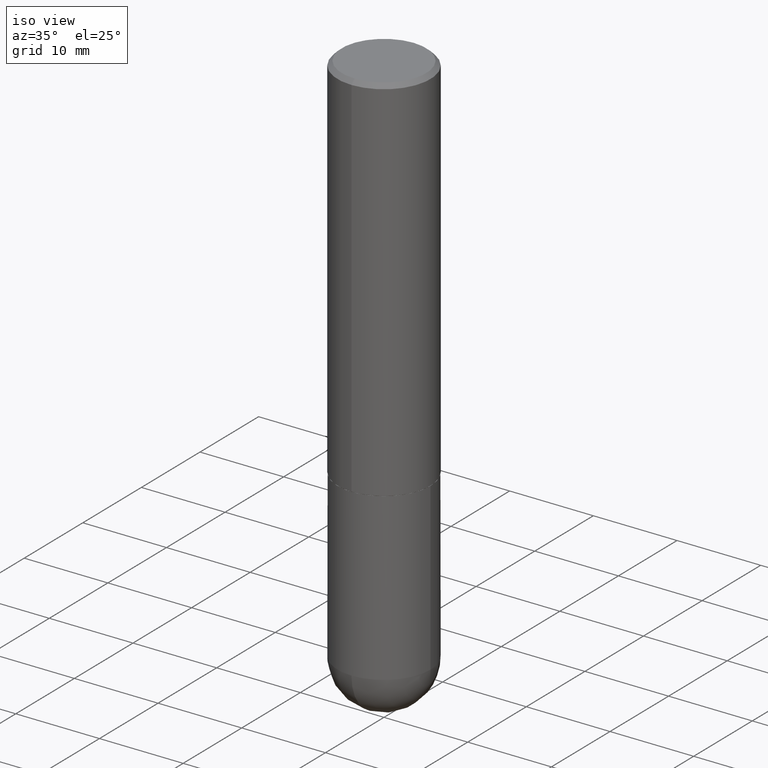
[diagram: clean part render]
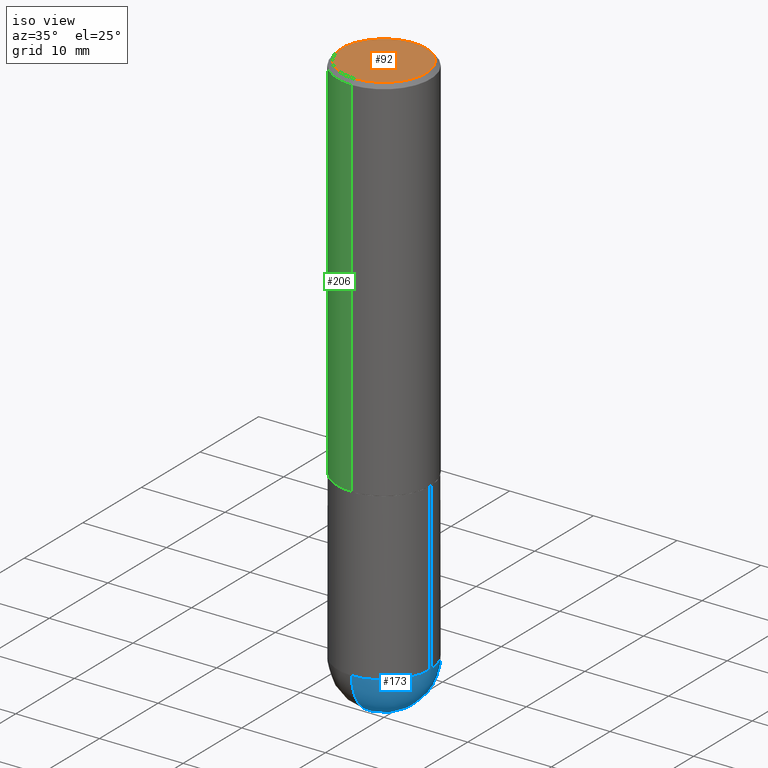
[diagram: same view with three faces highlighted in distinct colors, each labeled with its STEP entity id]
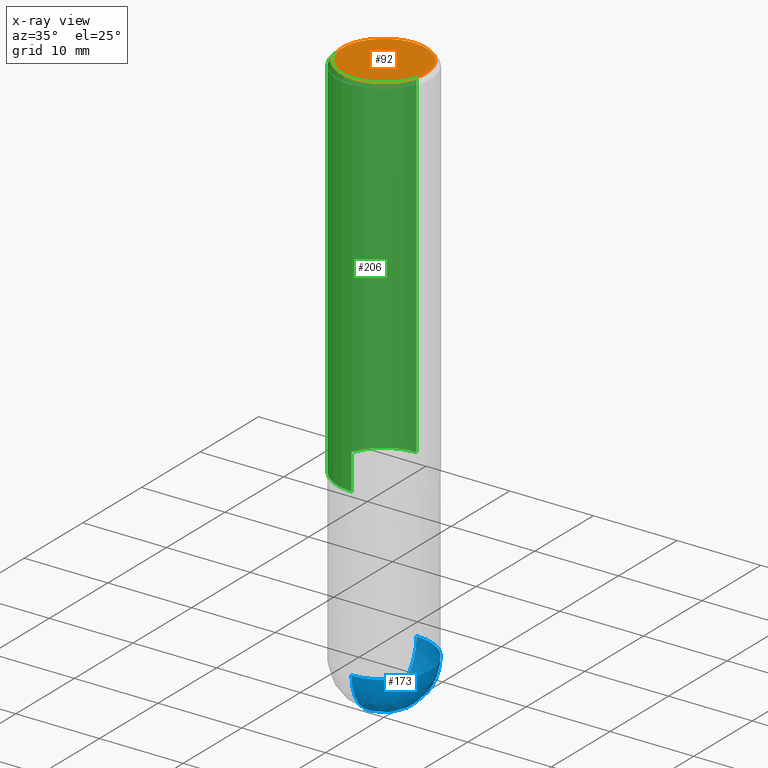
[diagram: x-ray of the same camera — body ghosted, the three highlighted faces saturated]
A machine part, iso view with three faces highlighted in distinct colors.
The next image is the same camera in x-ray (body ghosted, the three faces saturated) — at least one of them is partly hidden behind the body in this view.
Their STEP definitions:

[orange] entity #92 — the highlighted planar face has unit normal (0, -0, -1).
#2 = AXIS2_PLACEMENT_3D ( 'NONE', #355, #258, #34 ) ;
#26 = EDGE_CURVE ( 'NONE', #163, #367, #152, .T. ) ;
#34 = DIRECTION ( 'NONE',  ( -6.982962677686265922E-15, -1.000000000000000000, 3.490529179170961710E-15 ) ) ;
#88 = AXIS2_PLACEMENT_3D ( 'NONE', #283, #344, #244 ) ;
#92 = ADVANCED_FACE ( 'NONE', ( #189 ), #399, .F. ) ;
#138 = EDGE_LOOP ( 'NONE', ( #335, #166 ) ) ;
#152 = CIRCLE ( 'NONE', #394, 0.1987499999999997324 ) ;
#163 = VERTEX_POINT ( 'NONE', #377 ) ;
#166 = ORIENTED_EDGE ( 'NONE', *, *, #203, .T. ) ;
#189 = FACE_OUTER_BOUND ( 'NONE', #138, .T. ) ;
#203 = EDGE_CURVE ( 'NONE', #367, #163, #275, .T. ) ;
#227 = DIRECTION ( 'NONE',  ( -6.982962677686265922E-15, -1.000000000000000000, 3.490529179170961710E-15 ) ) ;
#244 = DIRECTION ( 'NONE',  ( 6.982962677686265922E-15, 1.000000000000000000, -3.490529179170962105E-15 ) ) ;
#256 = DIRECTION ( 'NONE',  ( -2.446133695730542157E-29, 3.490529179170962105E-15, 1.000000000000000000 ) ) ;
#258 = DIRECTION ( 'NONE',  ( -2.446133695730542157E-29, 3.490529179170962105E-15, 1.000000000000000000 ) ) ;
#275 = CIRCLE ( 'NONE', #2, 0.1987499999999997324 ) ;
#283 = CARTESIAN_POINT ( 'NONE',  ( 1.387863832190143458E-15, 0.1987499999999997324, -5.828559704850403027E-16 ) ) ;
#318 = CARTESIAN_POINT ( 'NONE',  ( -5.424874055151809807E-45, 7.741065509168630916E-31, 2.217734077503748917E-16 ) ) ;
#335 = ORIENTED_EDGE ( 'NONE', *, *, #26, .T. ) ;
#344 = DIRECTION ( 'NONE',  ( 2.446133695730541876E-29, -3.490529179170962105E-15, -1.000000000000000000 ) ) ;
#355 = CARTESIAN_POINT ( 'NONE',  ( -5.424874055151809807E-45, 7.741065509168630916E-31, 2.217734077503748917E-16 ) ) ;
#367 = VERTEX_POINT ( 'NONE', #371 ) ;
#371 = CARTESIAN_POINT ( 'NONE',  ( -1.432128957034805817E-15, -0.1987499999999997324, 9.155160821106029236E-16 ) ) ;
#377 = CARTESIAN_POINT ( 'NONE',  ( 1.457693458967007150E-15, 0.1987499999999997324, -4.719692666098528938E-16 ) ) ;
#394 = AXIS2_PLACEMENT_3D ( 'NONE', #318, #256, #227 ) ;
#399 = PLANE ( 'NONE',  #88 ) ;

[blue] entity #173 — the highlighted spherical surface has radius 5.5563 mm.
#36 = CARTESIAN_POINT ( 'NONE',  ( 0.2187499999999999445, -9.001475326704980594E-15, -2.531250000000000000 ) ) ;
#37 = AXIS2_PLACEMENT_3D ( 'NONE', #338, #57, #185 ) ;
#57 = DIRECTION ( 'NONE',  ( -1.000000000000000000, 6.982962677686265922E-15, -4.883557194083112340E-29 ) ) ;
#69 = CARTESIAN_POINT ( 'NONE',  ( 5.858973137742240763E-29, -9.311994507086761184E-15, -2.531250000000000000 ) ) ;
#73 = DIRECTION ( 'NONE',  ( -2.445468806185136597E-29, 3.491481338843145583E-15, 1.000000000000000000 ) ) ;
#77 = AXIS2_PLACEMENT_3D ( 'NONE', #321, #96, #247 ) ;
#96 = DIRECTION ( 'NONE',  ( -2.445468806185136597E-29, 3.491481338843145583E-15, 1.000000000000000000 ) ) ;
#97 = ORIENTED_EDGE ( 'NONE', *, *, #308, .F. ) ;
#101 = CARTESIAN_POINT ( 'NONE',  ( 5.858973137742240763E-29, -9.311994507086761184E-15, -2.531250000000000000 ) ) ;
#107 = AXIS2_PLACEMENT_3D ( 'NONE', #230, #73, #198 ) ;
#117 = EDGE_CURVE ( 'NONE', #183, #288, #204, .T. ) ;
#161 = CIRCLE ( 'NONE', #107, 0.2187499999999999445 ) ;
#172 = DIRECTION ( 'NONE',  ( 6.982962677686265922E-15, 1.000000000000000000, 0.000000000000000000 ) ) ;
#173 = ADVANCED_FACE ( 'NONE', ( #252 ), #259, .T. ) ;
#183 = VERTEX_POINT ( 'NONE', #36 ) ;
#185 = DIRECTION ( 'NONE',  ( 6.982962677686265922E-15, 1.000000000000000000, -2.497689594207324005E-15 ) ) ;
#191 = CARTESIAN_POINT ( 'NONE',  ( 1.527523085743931191E-15, 0.2187499999999910072, -2.531250000000000444 ) ) ;
#198 = DIRECTION ( 'NONE',  ( 1.000000000000000000, -6.982962677686265133E-15, 0.000000000000000000 ) ) ;
#202 = EDGE_CURVE ( 'NONE', #254, #183, #161, .T. ) ;
#204 = CIRCLE ( 'NONE', #77, 0.2187499999999999445 ) ;
#214 = EDGE_LOOP ( 'NONE', ( #97, #316, #218, #305 ) ) ;
#218 = ORIENTED_EDGE ( 'NONE', *, *, #117, .F. ) ;
#230 = CARTESIAN_POINT ( 'NONE',  ( 6.190092915656127011E-29, -8.837812138946710888E-15, -2.531250000000000000 ) ) ;
#247 = DIRECTION ( 'NONE',  ( 1.000000000000000000, -6.982962677686265133E-15, 0.000000000000000000 ) ) ;
#252 = FACE_OUTER_BOUND ( 'NONE', #214, .T. ) ;
#254 = VERTEX_POINT ( 'NONE', #261 ) ;
#259 = SPHERICAL_SURFACE ( 'NONE', #37, 0.2187500000000001943 ) ;
#261 = CARTESIAN_POINT ( 'NONE',  ( -1.554312234475159203E-15, -0.2187500000000091871, -2.531249999999999556 ) ) ;
#264 = AXIS2_PLACEMENT_3D ( 'NONE', #101, #278, #172 ) ;
#278 = DIRECTION ( 'NONE',  ( 1.000000000000000000, -6.982962677686265922E-15, 4.883557194083112340E-29 ) ) ;
#288 = VERTEX_POINT ( 'NONE', #191 ) ;
#290 = DIRECTION ( 'NONE',  ( -7.105427357601001070E-15, -1.000000000000000000, 0.000000000000000000 ) ) ;
#305 = ORIENTED_EDGE ( 'NONE', *, *, #202, .F. ) ;
#308 = EDGE_CURVE ( 'NONE', #375, #254, #326, .T. ) ;
#316 = ORIENTED_EDGE ( 'NONE', *, *, #360, .T. ) ;
#321 = CARTESIAN_POINT ( 'NONE',  ( 6.190092915656127011E-29, -8.837812138946710888E-15, -2.531250000000000000 ) ) ;
#326 = CIRCLE ( 'NONE', #382, 0.2187500000000001943 ) ;
#338 = CARTESIAN_POINT ( 'NONE',  ( 5.858973137742240763E-29, -9.311994507086761184E-15, -2.531250000000000000 ) ) ;
#341 = CARTESIAN_POINT ( 'NONE',  ( 6.403272820383139972E-29, -1.006236147559302482E-14, -2.750000000000000000 ) ) ;
#345 = CIRCLE ( 'NONE', #264, 0.2187500000000001943 ) ;
#347 = DIRECTION ( 'NONE',  ( -1.000000000000000000, 7.105427357601001070E-15, -4.926315508542082329E-29 ) ) ;
#360 = EDGE_CURVE ( 'NONE', #375, #288, #345, .T. ) ;
#375 = VERTEX_POINT ( 'NONE', #341 ) ;
#382 = AXIS2_PLACEMENT_3D ( 'NONE', #69, #347, #290 ) ;

[green] entity #206 — the highlighted cylindrical surface (partial cylindrical patch) has radius 5.5563 mm, axis along (-0, 0, 1).
#6 = CARTESIAN_POINT ( 'NONE',  ( 1.554312234475219551E-15, 0.2187500000000000833, -7.635532579436483302E-16 ) ) ;
#10 = EDGE_CURVE ( 'NONE', #187, #123, #325, .T. ) ;
#16 = EDGE_LOOP ( 'NONE', ( #400, #342, #85, #397 ) ) ;
#28 = LINE ( 'NONE', #232, #289 ) ;
#32 = CARTESIAN_POINT ( 'NONE',  ( 4.278287833832718385E-29, -6.104935534370011908E-15, -1.748999999999999888 ) ) ;
#39 = DIRECTION ( 'NONE',  ( -2.446133695730542437E-29, 3.490529179170962105E-15, 1.000000000000000000 ) ) ;
#65 = DIRECTION ( 'NONE',  ( -2.446133695730542437E-29, 3.490529179170962105E-15, 1.000000000000000000 ) ) ;
#80 = EDGE_CURVE ( 'NONE', #123, #346, #274, .T. ) ;
#85 = ORIENTED_EDGE ( 'NONE', *, *, #208, .T. ) ;
#95 = DIRECTION ( 'NONE',  ( -2.446133695730542157E-29, 3.490529179170962105E-15, 1.000000000000000000 ) ) ;
#98 = CARTESIAN_POINT ( 'NONE',  ( 0.000000000000000000, 0.000000000000000000, 0.000000000000000000 ) ) ;
#102 = DIRECTION ( 'NONE',  ( -6.982962677686265922E-15, -1.000000000000000000, 3.492862791899308860E-15 ) ) ;
#123 = VERTEX_POINT ( 'NONE', #220 ) ;
#133 = CARTESIAN_POINT ( 'NONE',  ( -1.500733937012521346E-15, -0.2187500000000000278, -0.01999999999999928571 ) ) ;
#164 = DIRECTION ( 'NONE',  ( -6.982962677686265922E-15, -1.000000000000000000, 3.490529179170962499E-15 ) ) ;
#176 = VECTOR ( 'NONE', #39, 39.37007874015748143 ) ;
#181 = EDGE_CURVE ( 'NONE', #187, #361, #192, .T. ) ;
#187 = VERTEX_POINT ( 'NONE', #351 ) ;
#192 = CIRCLE ( 'NONE', #223, 0.2187500000000002220 ) ;
#206 = ADVANCED_FACE ( 'NONE', ( #229 ), #285, .T. ) ;
#208 = EDGE_CURVE ( 'NONE', #361, #346, #28, .T. ) ;
#220 = CARTESIAN_POINT ( 'NONE',  ( 1.527523085743870843E-15, 0.2187499999999998890, -0.02000000000000081574 ) ) ;
#223 = AXIS2_PLACEMENT_3D ( 'NONE', #32, #309, #324 ) ;
#229 = FACE_OUTER_BOUND ( 'NONE', #16, .T. ) ;
#232 = CARTESIAN_POINT ( 'NONE',  ( -1.527523085743871237E-15, -0.2187500000000000833, 7.635532579436483302E-16 ) ) ;
#273 = CARTESIAN_POINT ( 'NONE',  ( 4.892267391461096505E-31, -6.981058358341942304E-17, -0.02000000000000005246 ) ) ;
#274 = CIRCLE ( 'NONE', #381, 0.2187499999999999445 ) ;
#285 = CYLINDRICAL_SURFACE ( 'NONE', #364, 0.2187500000000000833 ) ;
#289 = VECTOR ( 'NONE', #65, 39.37007874015748143 ) ;
#309 = DIRECTION ( 'NONE',  ( -2.446133695730542157E-29, 3.490529179170962105E-15, 1.000000000000000000 ) ) ;
#323 = CARTESIAN_POINT ( 'NONE',  ( -1.527523085743829428E-15, -0.2187500000000063283, -1.748999999999999000 ) ) ;
#324 = DIRECTION ( 'NONE',  ( -6.982962677686265922E-15, -1.000000000000000000, 3.746534391310985612E-15 ) ) ;
#325 = LINE ( 'NONE', #6, #176 ) ;
#342 = ORIENTED_EDGE ( 'NONE', *, *, #181, .T. ) ;
#346 = VERTEX_POINT ( 'NONE', #133 ) ;
#351 = CARTESIAN_POINT ( 'NONE',  ( 1.554312234475241442E-15, 0.2187499999999940881, -1.749000000000000554 ) ) ;
#361 = VERTEX_POINT ( 'NONE', #323 ) ;
#364 = AXIS2_PLACEMENT_3D ( 'NONE', #98, #95, #164 ) ;
#373 = DIRECTION ( 'NONE',  ( -2.446133695730542157E-29, 3.490529179170962105E-15, 1.000000000000000000 ) ) ;
#381 = AXIS2_PLACEMENT_3D ( 'NONE', #273, #373, #102 ) ;
#397 = ORIENTED_EDGE ( 'NONE', *, *, #80, .F. ) ;
#400 = ORIENTED_EDGE ( 'NONE', *, *, #10, .F. ) ;